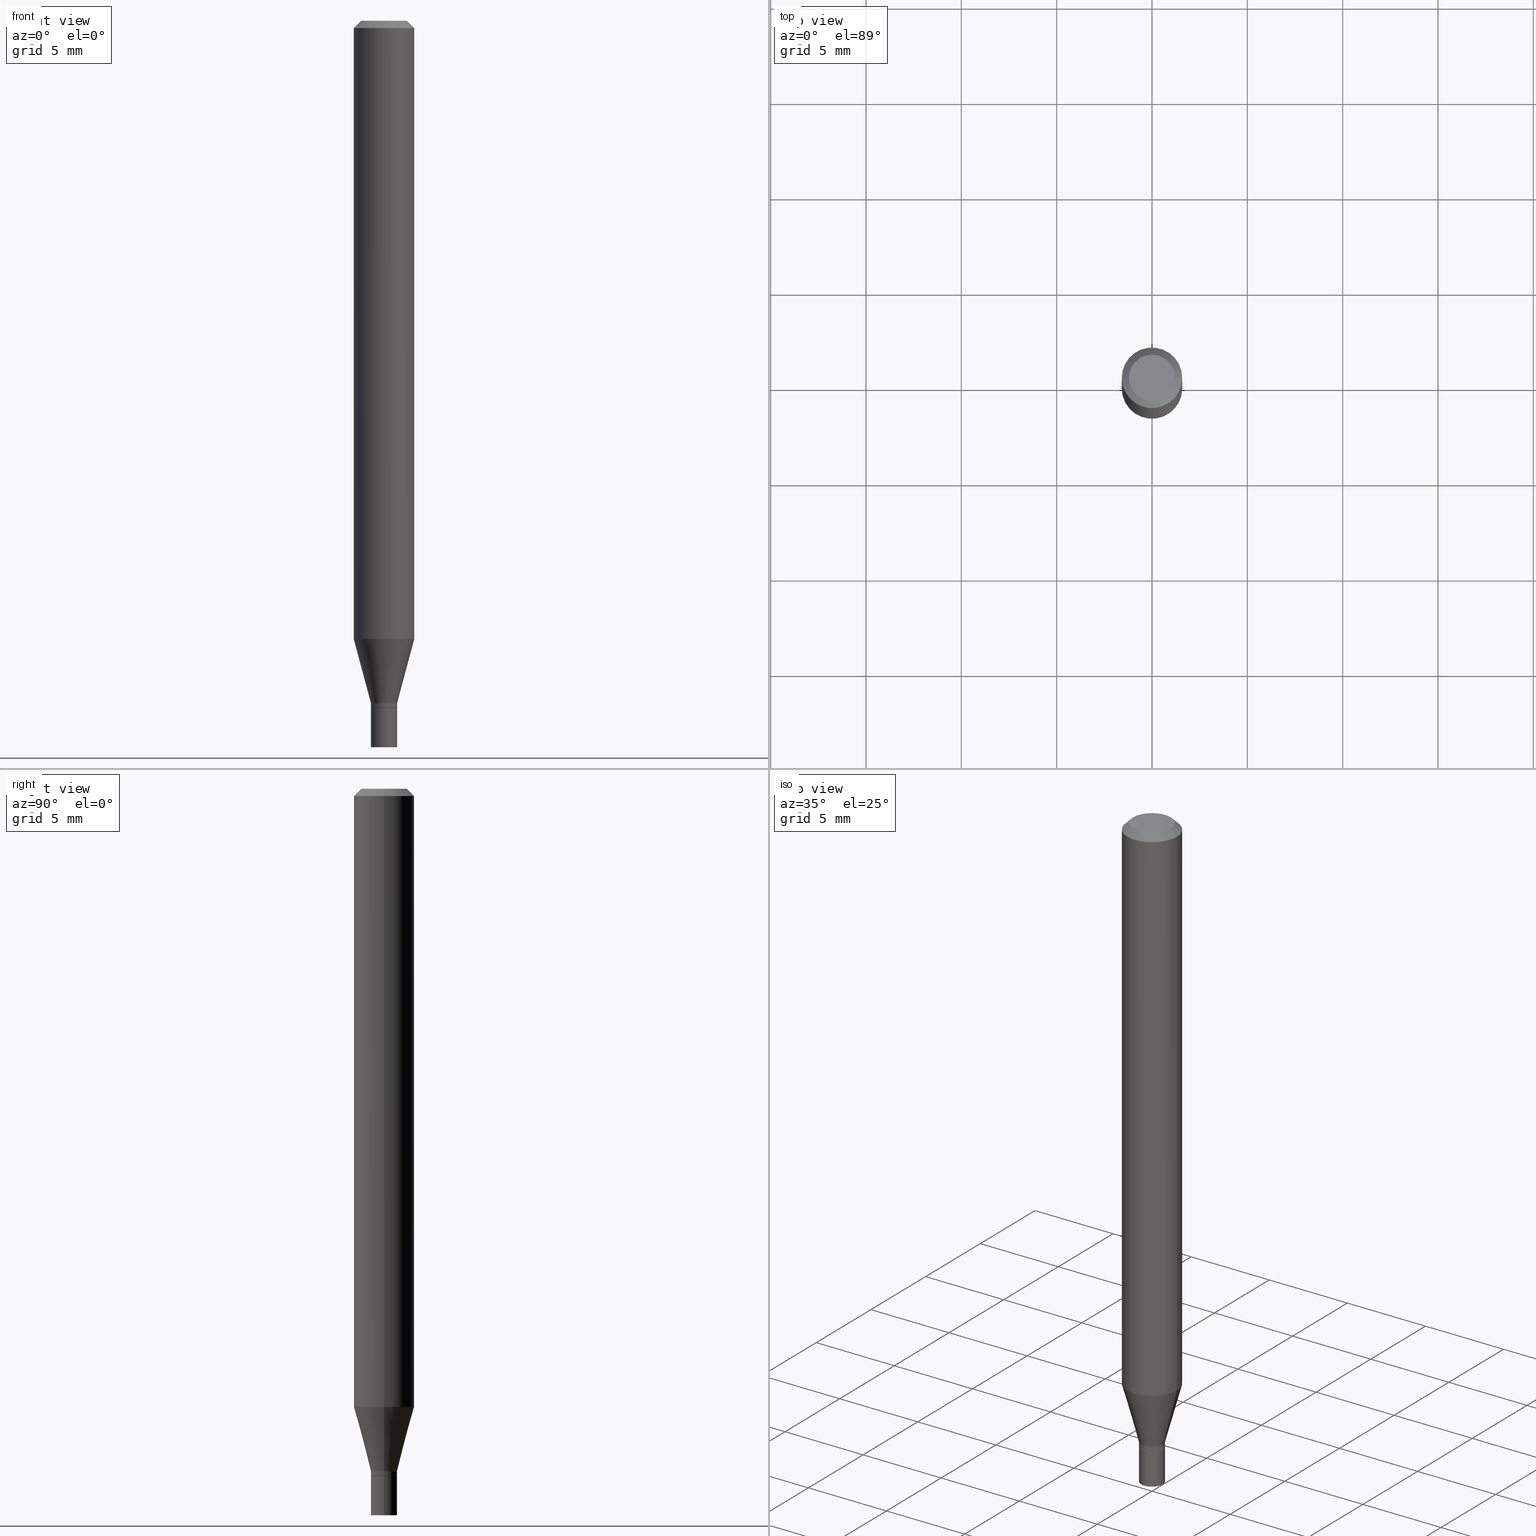
[diagram: canonical four-view strip — front | top / right | iso, engineering-drawing reading convention]
A machine part, canonical four-view strip (front | top / right | iso — engineering-drawing reading convention). The complete STEP part file that produces these views, byte-faithful:
ISO-10303-21;
HEADER;
FILE_DESCRIPTION (( 'STEP AP203' ),
    '1' );
FILE_NAME ('00350.STEP',
    '2024-03-19T21:01:46',
    ( '' ),
    ( '' ),
    'SwSTEP 2.0',
    'SolidWorks 2023',
    '' );
FILE_SCHEMA (( 'CONFIG_CONTROL_DESIGN' ));
ENDSEC;

DATA;
#1 = EDGE_CURVE ( 'NONE', #166, #98, #235, .T. ) ;
#2 = CARTESIAN_POINT ( 'NONE',  ( 0.000000000000000000, 0.000000000000000000, 0.000000000000000000 ) ) ;
#3 = CLOSED_SHELL ( 'NONE', ( #228, #362, #82, #44, #203, #196, #81, #155, #49, #421, #441, #330 ) ) ;
#4 = FACE_OUTER_BOUND ( 'NONE', #25, .T. ) ;
#5 = DIRECTION ( 'NONE',  ( -0.2588190451025209060, 5.211531920934547097E-15, 0.9659258262890682012 ) ) ;
#6 = PERSON_AND_ORGANIZATION ( #284, #426 ) ;
#7 = DIRECTION ( 'NONE',  ( -2.445468806185136597E-29, 3.491481338843145583E-15, 1.000000000000000000 ) ) ;
#8 = CARTESIAN_POINT ( 'NONE',  ( 3.668203209277705088E-31, -5.237222008264718399E-17, -0.01499999999999999944 ) ) ;
#9 = PERSON_AND_ORGANIZATION_ROLE ( 'design_supplier' ) ;
#10 = CARTESIAN_POINT ( 'NONE',  ( 0.02649999999999999925, -5.139460530777110033E-15, -1.419000000000000039 ) ) ;
#11 = EDGE_CURVE ( 'NONE', #124, #435, #386, .T. ) ;
#12 = DIRECTION ( 'NONE',  ( -2.445468806185136597E-29, 3.491481338843145583E-15, 1.000000000000000000 ) ) ;
#13 = PERSON_AND_ORGANIZATION ( #284, #426 ) ;
#14 = AXIS2_PLACEMENT_3D ( 'NONE', #8, #42, #54 ) ;
#15 = CIRCLE ( 'NONE', #248, 0.02699999999999999969 ) ;
#16 = APPROVAL_PERSON_ORGANIZATION ( #6, #464, #439 ) ;
#17 = LINE ( 'NONE', #45, #151 ) ;
#18 = ORIENTED_EDGE ( 'NONE', *, *, #69, .F. ) ;
#19 = DIRECTION ( 'NONE',  ( -2.445468806185136597E-29, 3.491481338843145583E-15, 1.000000000000000000 ) ) ;
#20 = APPROVAL ( #31, 'UNSPECIFIED' ) ;
#21 = ORIENTED_EDGE ( 'NONE', *, *, #383, .T. ) ;
#22 = ORIENTED_EDGE ( 'NONE', *, *, #251, .F. ) ;
#23 = CARTESIAN_POINT ( 'NONE',  ( 0.04749999999999999362, -4.035134999187574186E-16, 2.354505479474186932E-16 ) ) ;
#24 = AXIS2_PLACEMENT_3D ( 'NONE', #239, #380, #57 ) ;
#25 = EDGE_LOOP ( 'NONE', ( #153, #460 ) ) ;
#26 = CARTESIAN_POINT ( 'NONE',  ( 0.06250000000000000000, -4.888073874380388472E-16, -0.01499999999999999944 ) ) ;
#27 = EDGE_CURVE ( 'NONE', #245, #101, #405, .T. ) ;
#28 = CYLINDRICAL_SURFACE ( 'NONE', #331, 0.02699999999999999969 ) ;
#29 = DIRECTION ( 'NONE',  ( -2.445468806185136597E-29, 3.491481338843145583E-15, 1.000000000000000000 ) ) ;
#30 = AXIS2_PLACEMENT_3D ( 'NONE', #311, #402, #194 ) ;
#31 = APPROVAL_STATUS ( 'not_yet_approved' ) ;
#32 = AXIS2_PLACEMENT_3D ( 'NONE', #412, #352, #389 ) ;
#33 = APPLICATION_PROTOCOL_DEFINITION ( 'international standard', 'config_control_design', 1994, #445 ) ;
#34 = CYLINDRICAL_SURFACE ( 'NONE', #114, 0.02699999999999999969 ) ;
#35 = PERSON_AND_ORGANIZATION_ROLE ( 'creator' ) ;
#36 = PRODUCT ( '00350', '00350', '', ( #360 ) ) ;
#37 = CC_DESIGN_PERSON_AND_ORGANIZATION_ASSIGNMENT ( #220, #363, ( #36 ) ) ;
#38 = DIRECTION ( 'NONE',  ( -2.445468806185136877E-29, 3.491481338843145188E-15, 1.000000000000000000 ) ) ;
#39 = DATE_AND_TIME ( #183, #431 ) ;
#40 = DIRECTION ( 'NONE',  ( 1.000000000000000000, -6.982962677686280910E-15, 0.000000000000000000 ) ) ;
#41 = ADVANCED_FACE ( 'NONE', ( #297 ), #370, .F. ) ;
#42 = DIRECTION ( 'NONE',  ( -2.445468806185136597E-29, 3.491481338843145583E-15, 1.000000000000000000 ) ) ;
#43 = CYLINDRICAL_SURFACE ( 'NONE', #340, 0.06250000000000000000 ) ;
#44 = ADVANCED_FACE ( 'NONE', ( #120 ), #43, .T. ) ;
#45 = CARTESIAN_POINT ( 'NONE',  ( -0.02699999999999991990, 1.918465386552264810E-16, -1.328112474368820612E-30 ) ) ;
#46 = VECTOR ( 'NONE', #410, 39.37007874015748143 ) ;
#47 = CARTESIAN_POINT ( 'NONE',  ( 0.02699999999999991990, -1.885399922975286224E-16, 1.316567729464898656E-30 ) ) ;
#48 = PRODUCT_DEFINITION_SHAPE ( 'NONE', 'NONE',  #423 ) ;
#49 = ADVANCED_FACE ( 'NONE', ( #74 ), #221, .F. ) ;
#50 = CARTESIAN_POINT ( 'NONE',  ( 3.445665547914857626E-29, -4.919497206429992694E-15, -1.409000000000000252 ) ) ;
#51 = CARTESIAN_POINT ( 'NONE',  ( 3.668203209277704895E-29, -5.237222008264718177E-15, -1.500000000000000222 ) ) ;
#52 = ORIENTED_EDGE ( 'NONE', *, *, #1, .T. ) ;
#53 = EDGE_LOOP ( 'NONE', ( #230, #303, #254, #236 ) ) ;
#54 = DIRECTION ( 'NONE',  ( 1.000000000000000000, -6.982962677686266711E-15, 0.000000000000000000 ) ) ;
#55 = CIRCLE ( 'NONE', #32, 0.02699999999999992337 ) ;
#56 = LINE ( 'NONE', #133, #46 ) ;
#57 = DIRECTION ( 'NONE',  ( 1.000000000000000000, -6.982962677686265922E-15, 4.876176775795935793E-29 ) ) ;
#58 = CC_DESIGN_PERSON_AND_ORGANIZATION_ASSIGNMENT ( #219, #300, ( #232 ) ) ;
#59 = EDGE_CURVE ( 'NONE', #61, #131, #259, .T. ) ;
#60 = ORIENTED_EDGE ( 'NONE', *, *, #147, .F. ) ;
#61 = VERTEX_POINT ( 'NONE', #10 ) ;
#62 = CARTESIAN_POINT ( 'NONE',  ( 3.445665547914857626E-29, -4.919497206429992694E-15, -1.409000000000000252 ) ) ;
#63 = ORIENTED_EDGE ( 'NONE', *, *, #152, .F. ) ;
#64 = DIRECTION ( 'NONE',  ( -2.445468806185136597E-29, 3.491481338843145583E-15, 1.000000000000000000 ) ) ;
#65 = AXIS2_PLACEMENT_3D ( 'NONE', #112, #361, #116 ) ;
#66 = CIRCLE ( 'NONE', #218, 0.02649999999999999925 ) ;
#67 = DIRECTION ( 'NONE',  ( -2.445468806185136597E-29, 3.491481338843145583E-15, 1.000000000000000000 ) ) ;
#68 = DIRECTION ( 'NONE',  ( 1.000000000000000000, -6.982962677686277755E-15, 0.000000000000000000 ) ) ;
#69 = EDGE_CURVE ( 'NONE', #378, #417, #94, .T. ) ;
#70 = CC_DESIGN_APPROVAL ( #339, ( #423 ) ) ;
#71 = APPROVAL_DATE_TIME ( #39, #339 ) ;
#72 = ORIENTED_EDGE ( 'NONE', *, *, #215, .T. ) ;
#73 = APPLICATION_PROTOCOL_DEFINITION ( 'international standard', 'config_control_design', 1994, #242 ) ;
#74 = FACE_OUTER_BOUND ( 'NONE', #442, .T. ) ;
#75 = COORDINATED_UNIVERSAL_TIME_OFFSET ( 5, 0, .BEHIND. ) ;
#76 = DIRECTION ( 'NONE',  ( -1.000000000000000000, 6.982962677686265922E-15, -4.876176775795935793E-29 ) ) ;
#77 = CONICAL_SURFACE ( 'NONE', #108, 0.02699999999999991990, 0.2617993877991495744 ) ;
#78 = FACE_OUTER_BOUND ( 'NONE', #450, .T. ) ;
#79 = EDGE_CURVE ( 'NONE', #124, #312, #17, .T. ) ;
#80 = DIRECTION ( 'NONE',  ( -2.445468806185136597E-29, 3.491481338843145583E-15, 1.000000000000000000 ) ) ;
#81 = ADVANCED_FACE ( 'NONE', ( #199 ), #233, .T. ) ;
#82 = ADVANCED_FACE ( 'NONE', ( #128 ), #222, .T. ) ;
#83 = CC_DESIGN_SECURITY_CLASSIFICATION ( #446, ( #232 ) ) ;
#84 = DIRECTION ( 'NONE',  ( 1.000000000000000000, -6.982962677686266711E-15, 4.876176775795935793E-29 ) ) ;
#85 = CALENDAR_DATE ( 2024, 19, 3 ) ;
#86 = ORIENTED_EDGE ( 'NONE', *, *, #208, .T. ) ;
#87 = DIRECTION ( 'NONE',  ( -2.445468806185136877E-29, 3.491481338843145188E-15, 1.000000000000000000 ) ) ;
#88 = DIRECTION ( 'NONE',  ( 1.000000000000000000, -6.982962677686281699E-15, 0.000000000000000000 ) ) ;
#89 = EDGE_LOOP ( 'NONE', ( #72, #275, #267, #99 ) ) ;
#90 = DIRECTION ( 'NONE',  ( -2.445468806185136597E-29, 3.491481338843145583E-15, 1.000000000000000000 ) ) ;
#91 = ORIENTED_EDGE ( 'NONE', *, *, #401, .F. ) ;
#92 = ORIENTED_EDGE ( 'NONE', *, *, #123, .T. ) ;
#93 = FACE_OUTER_BOUND ( 'NONE', #418, .T. ) ;
#94 = CIRCLE ( 'NONE', #14, 0.06250000000000000000 ) ;
#95 = AXIS2_PLACEMENT_3D ( 'NONE', #346, #216, #100 ) ;
#96 = LOCAL_TIME ( 17, 1, 46.00000000000000000, #289 ) ;
#97 = FACE_OUTER_BOUND ( 'NONE', #197, .T. ) ;
#98 = VERTEX_POINT ( 'NONE', #336 ) ;
#99 = ORIENTED_EDGE ( 'NONE', *, *, #299, .F. ) ;
#100 = DIRECTION ( 'NONE',  ( 1.000000000000000000, -6.982962677686266711E-15, 0.000000000000000000 ) ) ;
#101 = VERTEX_POINT ( 'NONE', #156 ) ;
#102 = DIRECTION ( 'NONE',  ( 1.000000000000000000, -6.982962677686267499E-15, 4.852736867747366768E-29 ) ) ;
#103 = AXIS2_PLACEMENT_3D ( 'NONE', #187, #190, #256 ) ;
#104 = AXIS2_PLACEMENT_3D ( 'NONE', #243, #19, #274 ) ;
#105 = DIRECTION ( 'NONE',  ( 1.000000000000000000, -6.982962677686266711E-15, 4.876176775795935232E-29 ) ) ;
#106 = APPROVAL_STATUS ( 'not_yet_approved' ) ;
#107 = CONICAL_SURFACE ( 'NONE', #371, 0.06250000000000000000, 0.7853981633974405074 ) ;
#108 = AXIS2_PLACEMENT_3D ( 'NONE', #341, #130, #164 ) ;
#109 = CALENDAR_DATE ( 2024, 19, 3 ) ;
#110 = CC_DESIGN_APPROVAL ( #464, ( #446 ) ) ;
#111 = DIRECTION ( 'NONE',  ( 0.000000000000000000, 0.000000000000000000, 1.000000000000000000 ) ) ;
#112 = CARTESIAN_POINT ( 'NONE',  ( 3.316907271900976096E-16, 0.04749999999999999362, -4.812008962134135024E-17 ) ) ;
#113 = CARTESIAN_POINT ( 'NONE',  ( 3.470120235976709172E-29, -4.954412019818423555E-15, -1.419000000000000039 ) ) ;
#114 = AXIS2_PLACEMENT_3D ( 'NONE', #2, #294, #367 ) ;
#115 = CALENDAR_DATE ( 2024, 19, 3 ) ;
#116 = DIRECTION ( 'NONE',  ( -1.000000000000000000, 6.982962677686265922E-15, -4.876176775795935793E-29 ) ) ;
#117 = DESIGN_CONTEXT ( 'detailed design', #445, 'design' ) ;
#118 = DIRECTION ( 'NONE',  ( -2.445468806185136877E-29, 3.491481338843145188E-15, 1.000000000000000000 ) ) ;
#119 = CARTESIAN_POINT ( 'NONE',  ( 0.06250000000000000000, -4.893353679651821108E-15, -1.276512196331304860 ) ) ;
#120 = FACE_OUTER_BOUND ( 'NONE', #89, .T. ) ;
#121 = ORIENTED_EDGE ( 'NONE', *, *, #178, .F. ) ;
#122 = AXIS2_PLACEMENT_3D ( 'NONE', #184, #328, #224 ) ;
#123 = EDGE_CURVE ( 'NONE', #61, #435, #56, .T. ) ;
#124 = VERTEX_POINT ( 'NONE', #338 ) ;
#125 = CC_DESIGN_PERSON_AND_ORGANIZATION_ASSIGNMENT ( #191, #9, ( #232 ) ) ;
#126 = ORIENTED_EDGE ( 'NONE', *, *, #11, .F. ) ;
#127 = ORIENTED_EDGE ( 'NONE', *, *, #321, .F. ) ;
#128 = FACE_OUTER_BOUND ( 'NONE', #409, .T. ) ;
#129 = CARTESIAN_POINT ( 'NONE',  ( 3.121670756843082346E-29, -4.456918512296428650E-15, -1.276512196331304860 ) ) ;
#130 = DIRECTION ( 'NONE',  ( -2.445468806185136597E-29, 3.491481338843145583E-15, 1.000000000000000000 ) ) ;
#131 = VERTEX_POINT ( 'NONE', #448 ) ;
#132 = ORIENTED_EDGE ( 'NONE', *, *, #257, .T. ) ;
#133 = CARTESIAN_POINT ( 'NONE',  ( 0.02649999999999999925, -5.139460530777110033E-15, -1.419000000000000039 ) ) ;
#134 = DIRECTION ( 'NONE',  ( -2.445468806185136877E-29, 3.491481338843145188E-15, 1.000000000000000000 ) ) ;
#135 = AXIS2_PLACEMENT_3D ( 'NONE', #461, #459, #416 ) ;
#136 = ORIENTED_EDGE ( 'NONE', *, *, #257, .F. ) ;
#137 = ORIENTED_EDGE ( 'NONE', *, *, #401, .T. ) ;
#138 = DIRECTION ( 'NONE',  ( -2.445468806185136597E-29, 3.491481338843145583E-15, 1.000000000000000000 ) ) ;
#139 = CARTESIAN_POINT ( 'NONE',  ( -0.02699999999999991990, -4.370239985110565754E-15, -1.409000000000000252 ) ) ;
#140 = CARTESIAN_POINT ( 'NONE',  ( 3.470120235976709172E-29, -4.954412019818423555E-15, -1.419000000000000039 ) ) ;
#141 = AXIS2_PLACEMENT_3D ( 'NONE', #264, #80, #238 ) ;
#142 = CIRCLE ( 'NONE', #372, 0.02699999999999991990 ) ;
#143 = COORDINATED_UNIVERSAL_TIME_OFFSET ( 5, 0, .BEHIND. ) ;
#144 = DATE_AND_TIME ( #109, #96 ) ;
#145 = ORIENTED_EDGE ( 'NONE', *, *, #178, .T. ) ;
#146 =( CONVERSION_BASED_UNIT ( 'INCH', #428 ) LENGTH_UNIT ( ) NAMED_UNIT ( #348 ) );
#147 = EDGE_CURVE ( 'NONE', #435, #393, #165, .T. ) ;
#148 = AXIS2_PLACEMENT_3D ( 'NONE', #129, #209, #276 ) ;
#149 =( NAMED_UNIT ( * ) SI_UNIT ( $, .STERADIAN. ) SOLID_ANGLE_UNIT ( ) );
#150 = APPROVAL_ROLE ( '' ) ;
#151 = VECTOR ( 'NONE', #87, 39.37007874015748143 ) ;
#152 = EDGE_CURVE ( 'NONE', #377, #319, #240, .T. ) ;
#153 = ORIENTED_EDGE ( 'NONE', *, *, #251, .T. ) ;
#154 = LOCAL_TIME ( 17, 1, 46.00000000000000000, #333 ) ;
#155 = ADVANCED_FACE ( 'NONE', ( #78 ), #107, .T. ) ;
#156 = CARTESIAN_POINT ( 'NONE',  ( -0.02699999999999999969, -4.903970475386344434E-15, -1.419000000000000039 ) ) ;
#157 = ORIENTED_EDGE ( 'NONE', *, *, #206, .T. ) ;
#158 = DIRECTION ( 'NONE',  ( -2.445468806185136597E-29, 3.491481338843145583E-15, 1.000000000000000000 ) ) ;
#159 = AXIS2_PLACEMENT_3D ( 'NONE', #162, #440, #40 ) ;
#160 = CONICAL_SURFACE ( 'NONE', #285, 0.02699999999999991990, 0.2617993877991495744 ) ;
#161 = DIRECTION ( 'NONE',  ( 1.000000000000000000, -6.982962677686262766E-15, 0.000000000000000000 ) ) ;
#162 = CARTESIAN_POINT ( 'NONE',  ( 3.468897501573616931E-29, -4.952666279149002051E-15, -1.418500000000000094 ) ) ;
#163 = ORIENTED_EDGE ( 'NONE', *, *, #11, .T. ) ;
#164 = DIRECTION ( 'NONE',  ( 1.000000000000000000, -6.982962677686281699E-15, 0.000000000000000000 ) ) ;
#165 = LINE ( 'NONE', #47, #365 ) ;
#166 = VERTEX_POINT ( 'NONE', #212 ) ;
#167 = CARTESIAN_POINT ( 'NONE',  ( -0.06250000000000000000, -1.810556156339475445E-15, -0.01499999999999999944 ) ) ;
#168 = EDGE_LOOP ( 'NONE', ( #169, #145, #174, #429 ) ) ;
#169 = ORIENTED_EDGE ( 'NONE', *, *, #59, .T. ) ;
#170 = EDGE_CURVE ( 'NONE', #393, #210, #286, .T. ) ;
#171 = CARTESIAN_POINT ( 'NONE',  ( 0.02699999999999991990, -5.108037198727522179E-15, -1.409000000000000252 ) ) ;
#172 = APPROVAL_PERSON_ORGANIZATION ( #355, #339, #150 ) ;
#173 = APPROVAL_PERSON_ORGANIZATION ( #217, #20, #466 ) ;
#174 = ORIENTED_EDGE ( 'NONE', *, *, #349, .F. ) ;
#175 = DIRECTION ( 'NONE',  ( -2.445468806185136597E-29, 3.491481338843145583E-15, 1.000000000000000000 ) ) ;
#176 = EDGE_CURVE ( 'NONE', #101, #98, #202, .T. ) ;
#177 = DIRECTION ( 'NONE',  ( 1.000000000000000000, -6.982962677686265922E-15, 4.876176775795935232E-29 ) ) ;
#178 = EDGE_CURVE ( 'NONE', #131, #124, #329, .T. ) ;
#179 = ADVANCED_FACE ( 'NONE', ( #4 ), #332, .F. ) ;
#180 = FACE_OUTER_BOUND ( 'NONE', #301, .T. ) ;
#181 = CC_DESIGN_DATE_AND_TIME_ASSIGNMENT ( #225, #373, ( #446 ) ) ;
#182 = VECTOR ( 'NONE', #320, 39.37007874015748143 ) ;
#183 = CALENDAR_DATE ( 2024, 19, 3 ) ;
#184 = CARTESIAN_POINT ( 'NONE',  ( 3.470120235976709172E-29, -4.954412019818423555E-15, -1.419000000000000039 ) ) ;
#185 = DIRECTION ( 'NONE',  ( 0.2588190451025209060, 1.565188264969625123E-15, 0.9659258262890682012 ) ) ;
#186 =( LENGTH_UNIT ( ) NAMED_UNIT ( * ) SI_UNIT ( $, .METRE. ) );
#187 = CARTESIAN_POINT ( 'NONE',  ( 3.576687321579069994E-29, -5.368277968210015545E-15, -1.500000000000000222 ) ) ;
#188 = MANIFOLD_SOLID_BREP ( 'Body-Move/Copy2[2]', #3 ) ;
#189 = DIRECTION ( 'NONE',  ( 2.438088387897960049E-29, -3.491481338843145188E-15, -1.000000000000000000 ) ) ;
#190 = DIRECTION ( 'NONE',  ( -2.438088387897960049E-29, 3.491481338843145188E-15, 1.000000000000000000 ) ) ;
#191 = PERSON_AND_ORGANIZATION ( #284, #426 ) ;
#192 = AXIS2_PLACEMENT_3D ( 'NONE', #443, #90, #161 ) ;
#193 = DIRECTION ( 'NONE',  ( -1.000000000000000000, 6.982962677686266711E-15, 0.000000000000000000 ) ) ;
#194 = DIRECTION ( 'NONE',  ( 1.000000000000000000, -6.982962677686267499E-15, 4.852736867747366768E-29 ) ) ;
#195 = APPROVAL_STATUS ( 'not_yet_approved' ) ;
#196 = ADVANCED_FACE ( 'NONE', ( #334 ), #160, .T. ) ;
#197 = EDGE_LOOP ( 'NONE', ( #344, #163, #262, #384 ) ) ;
#198 = MANIFOLD_SOLID_BREP ( 'Body-Move/Copy2[1]', #302 ) ;
#199 = FACE_OUTER_BOUND ( 'NONE', #309, .T. ) ;
#200 = VECTOR ( 'NONE', #368, 39.37007874015748143 ) ;
#201 = FACE_OUTER_BOUND ( 'NONE', #272, .T. ) ;
#202 = CIRCLE ( 'NONE', #356, 0.02699999999999999969 ) ;
#203 = ADVANCED_FACE ( 'NONE', ( #201 ), #77, .T. ) ;
#204 = VERTEX_POINT ( 'NONE', #310 ) ;
#205 = LINE ( 'NONE', #343, #260 ) ;
#206 = EDGE_CURVE ( 'NONE', #319, #378, #269, .T. ) ;
#207 = ORIENTED_EDGE ( 'NONE', *, *, #206, .F. ) ;
#208 = EDGE_CURVE ( 'NONE', #245, #166, #444, .T. ) ;
#209 = DIRECTION ( 'NONE',  ( -2.445468806185136597E-29, 3.491481338843145583E-15, 1.000000000000000000 ) ) ;
#210 = VERTEX_POINT ( 'NONE', #119 ) ;
#211 = DIRECTION ( 'NONE',  ( 1.000000000000000000, -6.982962677686277755E-15, 0.000000000000000000 ) ) ;
#212 = CARTESIAN_POINT ( 'NONE',  ( 0.02699999999999999969, -5.425762000562247662E-15, -1.500000000000000222 ) ) ;
#213 = CIRCLE ( 'NONE', #135, 0.02699999999999991990 ) ;
#214 = CYLINDRICAL_SURFACE ( 'NONE', #104, 0.02699999999999991990 ) ;
#215 = EDGE_CURVE ( 'NONE', #210, #204, #291, .T. ) ;
#216 = DIRECTION ( 'NONE',  ( -2.445468806185136597E-29, 3.491481338843145583E-15, 1.000000000000000000 ) ) ;
#217 = PERSON_AND_ORGANIZATION ( #284, #426 ) ;
#218 = AXIS2_PLACEMENT_3D ( 'NONE', #249, #350, #68 ) ;
#219 = PERSON_AND_ORGANIZATION ( #284, #426 ) ;
#220 = PERSON_AND_ORGANIZATION ( #284, #426 ) ;
#221 = PLANE ( 'NONE',  #65 ) ;
#222 = CONICAL_SURFACE ( 'NONE', #436, 0.06250000000000000000, 0.7853981633974405074 ) ;
#223 = AXIS2_PLACEMENT_3D ( 'NONE', #391, #111, #253 ) ;
#224 = DIRECTION ( 'NONE',  ( 1.000000000000000000, -6.982962677686277755E-15, 0.000000000000000000 ) ) ;
#225 = DATE_AND_TIME ( #85, #154 ) ;
#226 = DIRECTION ( 'NONE',  ( -0.7071067811865656694, 7.493145998870420424E-15, 0.7071067811865294761 ) ) ;
#227 = CARTESIAN_POINT ( 'NONE',  ( -0.02699999999999999969, 1.918465386552270480E-16, -1.328112474368824466E-30 ) ) ;
#228 = ADVANCED_FACE ( 'NONE', ( #270 ), #408, .T. ) ;
#229 = SECURITY_CLASSIFICATION_LEVEL ( 'unclassified' ) ;
#230 = ORIENTED_EDGE ( 'NONE', *, *, #433, .F. ) ;
#231 = CIRCLE ( 'NONE', #148, 0.06250000000000000000 ) ;
#232 = PRODUCT_DEFINITION_FORMATION_WITH_SPECIFIED_SOURCE ( 'ANY', '', #36, .NOT_KNOWN. ) ;
#233 = CYLINDRICAL_SURFACE ( 'NONE', #424, 0.06250000000000000000 ) ;
#234 = CARTESIAN_POINT ( 'NONE',  ( -0.06250000000000000000, 3.840629472727444916E-16, -0.01499999999999999944 ) ) ;
#235 = LINE ( 'NONE', #261, #200 ) ;
#236 = ORIENTED_EDGE ( 'NONE', *, *, #292, .F. ) ;
#237 = ORIENTED_EDGE ( 'NONE', *, *, #433, .T. ) ;
#238 = DIRECTION ( 'NONE',  ( 1.000000000000000000, -6.982962677686277755E-15, 0.000000000000000000 ) ) ;
#239 = CARTESIAN_POINT ( 'NONE',  ( 3.470120235976709172E-29, -4.954412019818423555E-15, -1.419000000000000039 ) ) ;
#240 = CIRCLE ( 'NONE', #30, 0.04749999999999999362 ) ;
#241 = CIRCLE ( 'NONE', #392, 0.04749999999999999362 ) ;
#242 = APPLICATION_CONTEXT ( 'configuration controlled 3d designs of mechanical parts and assemblies' ) ;
#243 = CARTESIAN_POINT ( 'NONE',  ( 0.000000000000000000, 0.000000000000000000, 0.000000000000000000 ) ) ;
#244 = DIRECTION ( 'NONE',  ( -1.000000000000000000, 6.982962677686266711E-15, 0.000000000000000000 ) ) ;
#245 = VERTEX_POINT ( 'NONE', #381 ) ;
#246 = DIRECTION ( 'NONE',  ( -2.445468806185136597E-29, 3.491481338843145583E-15, 1.000000000000000000 ) ) ;
#247 = LINE ( 'NONE', #463, #399 ) ;
#248 = AXIS2_PLACEMENT_3D ( 'NONE', #322, #246, #279 ) ;
#249 = CARTESIAN_POINT ( 'NONE',  ( 3.470120235976709172E-29, -4.954412019818423555E-15, -1.419000000000000039 ) ) ;
#250 = ORIENTED_EDGE ( 'NONE', *, *, #208, .F. ) ;
#251 = EDGE_CURVE ( 'NONE', #98, #101, #15, .T. ) ;
#252 = ORIENTED_EDGE ( 'NONE', *, *, #59, .F. ) ;
#253 = DIRECTION ( 'NONE',  ( 1.000000000000000000, 0.000000000000000000, 0.000000000000000000 ) ) ;
#254 = ORIENTED_EDGE ( 'NONE', *, *, #170, .T. ) ;
#255 = CC_DESIGN_PERSON_AND_ORGANIZATION_ASSIGNMENT ( #465, #35, ( #423 ) ) ;
#256 = DIRECTION ( 'NONE',  ( 1.000000000000000000, -6.982962677686265922E-15, 4.876176775795935793E-29 ) ) ;
#257 = EDGE_CURVE ( 'NONE', #166, #245, #335, .T. ) ;
#258 = DATE_AND_TIME ( #434, #295 ) ;
#259 = CIRCLE ( 'NONE', #141, 0.02649999999999999925 ) ;
#260 = VECTOR ( 'NONE', #134, 39.37007874015748143 ) ;
#261 = CARTESIAN_POINT ( 'NONE',  ( 0.02699999999999999969, -1.885399922975291894E-16, 1.316567729464902510E-30 ) ) ;
#262 = ORIENTED_EDGE ( 'NONE', *, *, #147, .T. ) ;
#263 = DIRECTION ( 'NONE',  ( 1.000000000000000000, -6.982962677686261189E-15, 0.000000000000000000 ) ) ;
#264 = CARTESIAN_POINT ( 'NONE',  ( 3.470120235976709172E-29, -4.954412019818423555E-15, -1.419000000000000039 ) ) ;
#265 = VECTOR ( 'NONE', #38, 39.37007874015748143 ) ;
#266 = APPROVAL_DATE_TIME ( #374, #464 ) ;
#267 = ORIENTED_EDGE ( 'NONE', *, *, #342, .F. ) ;
#268 = AXIS2_PLACEMENT_3D ( 'NONE', #140, #64, #211 ) ;
#269 = LINE ( 'NONE', #234, #379 ) ;
#270 = FACE_OUTER_BOUND ( 'NONE', #359, .T. ) ;
#271 = PERSON_AND_ORGANIZATION_ROLE ( 'classification_officer' ) ;
#272 = EDGE_LOOP ( 'NONE', ( #458, #237, #304, #323 ) ) ;
#273 = ORIENTED_EDGE ( 'NONE', *, *, #292, .T. ) ;
#274 = DIRECTION ( 'NONE',  ( 1.000000000000000000, -6.982962677686265922E-15, 4.876176775795935232E-29 ) ) ;
#275 = ORIENTED_EDGE ( 'NONE', *, *, #430, .T. ) ;
#276 = DIRECTION ( 'NONE',  ( 1.000000000000000000, -6.982962677686262766E-15, 0.000000000000000000 ) ) ;
#277 = CONICAL_SURFACE ( 'NONE', #122, 0.02649999999999999925, 0.7853981633974739252 ) ;
#278 = ORIENTED_EDGE ( 'NONE', *, *, #396, .F. ) ;
#279 = DIRECTION ( 'NONE',  ( 1.000000000000000000, -6.982962677686261189E-15, 0.000000000000000000 ) ) ;
#280 = CARTESIAN_POINT ( 'NONE',  ( 3.668203209277705088E-31, -5.237222008264718399E-17, -0.01499999999999999944 ) ) ;
#281 = EDGE_LOOP ( 'NONE', ( #121, #21, #92, #126 ) ) ;
#282 = FACE_OUTER_BOUND ( 'NONE', #168, .T. ) ;
#283 = CARTESIAN_POINT ( 'NONE',  ( 0.000000000000000000, 0.000000000000000000, 0.000000000000000000 ) ) ;
#284 = PERSON ( 'UNSPECIFIED', 'UNSPECIFIED', 'UNSPECIFIED', ('UNSPECIFIED'), ('UNSPECIFIED'), ('UNSPECIFIED') ) ;
#285 = AXIS2_PLACEMENT_3D ( 'NONE', #50, #394, #88 ) ;
#286 = LINE ( 'NONE', #314, #413 ) ;
#287 = DATE_TIME_ROLE ( 'creation_date' ) ;
#288 = APPROVAL_DATE_TIME ( #144, #20 ) ;
#289 = COORDINATED_UNIVERSAL_TIME_OFFSET ( 5, 0, .BEHIND. ) ;
#290 = CC_DESIGN_DATE_AND_TIME_ASSIGNMENT ( #258, #287, ( #423 ) ) ;
#291 = CIRCLE ( 'NONE', #192, 0.06250000000000000000 ) ;
#292 = EDGE_CURVE ( 'NONE', #204, #210, #231, .T. ) ;
#293 = CARTESIAN_POINT ( 'NONE',  ( 0.000000000000000000, 0.000000000000000000, 0.000000000000000000 ) ) ;
#294 = DIRECTION ( 'NONE',  ( -2.445468806185136597E-29, 3.491481338843145583E-15, 1.000000000000000000 ) ) ;
#295 = LOCAL_TIME ( 17, 1, 46.00000000000000000, #143 ) ;
#296 = CARTESIAN_POINT ( 'NONE',  ( 3.668203209277705088E-31, -5.237222008264718399E-17, -0.01499999999999999944 ) ) ;
#297 = FACE_OUTER_BOUND ( 'NONE', #308, .T. ) ;
#298 = UNCERTAINTY_MEASURE_WITH_UNIT (LENGTH_MEASURE( 1.000000000000000082E-05 ), #146, 'distance_accuracy_value', 'NONE');
#299 = EDGE_CURVE ( 'NONE', #210, #417, #313, .T. ) ;
#300 = PERSON_AND_ORGANIZATION_ROLE ( 'creator' ) ;
#301 = EDGE_LOOP ( 'NONE', ( #252, #420 ) ) ;
#302 = CLOSED_SHELL ( 'NONE', ( #407, #41, #462, #179 ) ) ;
#303 = ORIENTED_EDGE ( 'NONE', *, *, #327, .T. ) ;
#304 = ORIENTED_EDGE ( 'NONE', *, *, #215, .F. ) ;
#305 = VECTOR ( 'NONE', #226, 39.37007874015748143 ) ;
#306 = DIRECTION ( 'NONE',  ( 1.000000000000000000, -6.982962677686266711E-15, 4.876176775795935793E-29 ) ) ;
#307 = LOCAL_TIME ( 17, 1, 46.00000000000000000, #447 ) ;
#308 = EDGE_LOOP ( 'NONE', ( #136, #250 ) ) ;
#309 = EDGE_LOOP ( 'NONE', ( #315, #273, #347, #18 ) ) ;
#310 = CARTESIAN_POINT ( 'NONE',  ( -0.06250000000000000000, -4.012829302446366033E-15, -1.276512196331304860 ) ) ;
#311 = CARTESIAN_POINT ( 'NONE',  ( -5.757869704046039586E-45, 8.220711943787967025E-31, 2.354505479474161294E-16 ) ) ;
#312 = VERTEX_POINT ( 'NONE', #139 ) ;
#313 = LINE ( 'NONE', #385, #182 ) ;
#314 = CARTESIAN_POINT ( 'NONE',  ( 0.02699999999999991990, -5.108037198727522179E-15, -1.409000000000000252 ) ) ;
#315 = ORIENTED_EDGE ( 'NONE', *, *, #430, .F. ) ;
#316 = ORIENTED_EDGE ( 'NONE', *, *, #176, .F. ) ;
#317 = CARTESIAN_POINT ( 'NONE',  ( -5.757869704046039586E-45, 8.220711943787967025E-31, 2.354505479474161294E-16 ) ) ;
#318 =( GEOMETRIC_REPRESENTATION_CONTEXT ( 3 ) GLOBAL_UNCERTAINTY_ASSIGNED_CONTEXT ( ( #298 ) ) GLOBAL_UNIT_ASSIGNED_CONTEXT ( ( #146, #395, #149 ) ) REPRESENTATION_CONTEXT ( 'NONE', 'WORKASPACE' ) );
#319 = VERTEX_POINT ( 'NONE', #353 ) ;
#320 = DIRECTION ( 'NONE',  ( -2.445468806185136877E-29, 3.491481338843145188E-15, 1.000000000000000000 ) ) ;
#321 = EDGE_CURVE ( 'NONE', #393, #312, #142, .T. ) ;
#322 = CARTESIAN_POINT ( 'NONE',  ( 3.470120235976709172E-29, -4.954412019818423555E-15, -1.419000000000000039 ) ) ;
#323 = ORIENTED_EDGE ( 'NONE', *, *, #170, .F. ) ;
#324 = CARTESIAN_POINT ( 'NONE',  ( -0.02699999999999991990, -4.727650667774767051E-15, -1.409000000000000252 ) ) ;
#325 = VECTOR ( 'NONE', #5, 39.37007874015748143 ) ;
#326 = LINE ( 'NONE', #324, #325 ) ;
#327 = EDGE_CURVE ( 'NONE', #312, #393, #213, .T. ) ;
#328 = DIRECTION ( 'NONE',  ( -2.445468806185136597E-29, 3.491481338843145583E-15, 1.000000000000000000 ) ) ;
#329 = LINE ( 'NONE', #400, #305 ) ;
#330 = ADVANCED_FACE ( 'NONE', ( #97 ), #214, .T. ) ;
#331 = AXIS2_PLACEMENT_3D ( 'NONE', #283, #425, #105 ) ;
#332 = PLANE ( 'NONE',  #388 ) ;
#333 = COORDINATED_UNIVERSAL_TIME_OFFSET ( 5, 0, .BEHIND. ) ;
#334 = FACE_OUTER_BOUND ( 'NONE', #53, .T. ) ;
#335 = CIRCLE ( 'NONE', #366, 0.02699999999999999969 ) ;
#336 = CARTESIAN_POINT ( 'NONE',  ( 0.02699999999999999969, -5.142952012115952251E-15, -1.419000000000000039 ) ) ;
#337 = DIRECTION ( 'NONE',  ( 1.000000000000000000, -6.982962677686261189E-15, 0.000000000000000000 ) ) ;
#338 = CARTESIAN_POINT ( 'NONE',  ( -0.02699999999999992337, -4.760819740493776408E-15, -1.418500000000000094 ) ) ;
#339 = APPROVAL ( #106, 'UNSPECIFIED' ) ;
#340 = AXIS2_PLACEMENT_3D ( 'NONE', #293, #438, #84 ) ;
#341 = CARTESIAN_POINT ( 'NONE',  ( 3.445665547914857626E-29, -4.919497206429992694E-15, -1.409000000000000252 ) ) ;
#342 = EDGE_CURVE ( 'NONE', #417, #378, #406, .T. ) ;
#343 = CARTESIAN_POINT ( 'NONE',  ( -0.06250000000000000000, 4.440892098500626162E-16, -3.074334431409316114E-30 ) ) ;
#344 = ORIENTED_EDGE ( 'NONE', *, *, #79, .F. ) ;
#345 = ORIENTED_EDGE ( 'NONE', *, *, #79, .T. ) ;
#346 = CARTESIAN_POINT ( 'NONE',  ( 3.668203209277705088E-31, -5.237222008264718399E-17, -0.01499999999999999944 ) ) ;
#347 = ORIENTED_EDGE ( 'NONE', *, *, #299, .T. ) ;
#348 = DIMENSIONAL_EXPONENTS ( 1.000000000000000000, 0.000000000000000000, 0.000000000000000000, 0.000000000000000000, 0.000000000000000000, 0.000000000000000000, 0.000000000000000000 ) ;
#349 = EDGE_CURVE ( 'NONE', #435, #124, #55, .T. ) ;
#350 = DIRECTION ( 'NONE',  ( -2.445468806185136597E-29, 3.491481338843145583E-15, 1.000000000000000000 ) ) ;
#351 = AXIS2_PLACEMENT_3D ( 'NONE', #51, #12, #337 ) ;
#352 = DIRECTION ( 'NONE',  ( -2.445468806185136597E-29, 3.491481338843145583E-15, 1.000000000000000000 ) ) ;
#353 = CARTESIAN_POINT ( 'NONE',  ( -0.04749999999999999362, 3.578768372314215436E-16, 2.354505479474137135E-16 ) ) ;
#354 = CARTESIAN_POINT ( 'NONE',  ( 0.000000000000000000, 0.000000000000000000, 0.000000000000000000 ) ) ;
#355 = PERSON_AND_ORGANIZATION ( #284, #426 ) ;
#356 = AXIS2_PLACEMENT_3D ( 'NONE', #113, #7, #263 ) ;
#357 = CC_DESIGN_PERSON_AND_ORGANIZATION_ASSIGNMENT ( #13, #271, ( #446 ) ) ;
#358 = CARTESIAN_POINT ( 'NONE',  ( 0.02699999999999992337, -5.141206271446531536E-15, -1.418500000000000094 ) ) ;
#359 = EDGE_LOOP ( 'NONE', ( #411, #345, #127, #60 ) ) ;
#360 = MECHANICAL_CONTEXT ( 'NONE', #242, 'mechanical' ) ;
#361 = DIRECTION ( 'NONE',  ( 2.438088387897960049E-29, -3.491481338843145188E-15, -1.000000000000000000 ) ) ;
#362 = ADVANCED_FACE ( 'NONE', ( #282 ), #414, .T. ) ;
#363 = PERSON_AND_ORGANIZATION_ROLE ( 'design_owner' ) ;
#364 = ORIENTED_EDGE ( 'NONE', *, *, #69, .T. ) ;
#365 = VECTOR ( 'NONE', #118, 39.37007874015748143 ) ;
#366 = AXIS2_PLACEMENT_3D ( 'NONE', #454, #67, #422 ) ;
#367 = DIRECTION ( 'NONE',  ( 1.000000000000000000, -6.982962677686266711E-15, 4.876176775795935232E-29 ) ) ;
#368 = DIRECTION ( 'NONE',  ( -2.445468806185136877E-29, 3.491481338843145188E-15, 1.000000000000000000 ) ) ;
#369 = SHAPE_DEFINITION_REPRESENTATION ( #48, #403 ) ;
#370 = PLANE ( 'NONE',  #103 ) ;
#371 = AXIS2_PLACEMENT_3D ( 'NONE', #280, #455, #244 ) ;
#372 = AXIS2_PLACEMENT_3D ( 'NONE', #62, #29, #419 ) ;
#373 = DATE_TIME_ROLE ( 'classification_date' ) ;
#374 = DATE_AND_TIME ( #115, #307 ) ;
#375 = CARTESIAN_POINT ( 'NONE',  ( 0.000000000000000000, 0.000000000000000000, 0.000000000000000000 ) ) ;
#376 = DIRECTION ( 'NONE',  ( -0.7071067811865420216, 2.468850131082199474E-15, -0.7071067811865530128 ) ) ;
#377 = VERTEX_POINT ( 'NONE', #23 ) ;
#378 = VERTEX_POINT ( 'NONE', #167 ) ;
#379 = VECTOR ( 'NONE', #376, 39.37007874015748143 ) ;
#380 = DIRECTION ( 'NONE',  ( -2.438088387897960049E-29, 3.491481338843145188E-15, 1.000000000000000000 ) ) ;
#381 = CARTESIAN_POINT ( 'NONE',  ( -0.02699999999999999969, -4.903970475386344434E-15, -1.500000000000000222 ) ) ;
#382 = ORIENTED_EDGE ( 'NONE', *, *, #396, .T. ) ;
#383 = EDGE_CURVE ( 'NONE', #131, #61, #66, .T. ) ;
#384 = ORIENTED_EDGE ( 'NONE', *, *, #327, .F. ) ;
#385 = CARTESIAN_POINT ( 'NONE',  ( 0.06250000000000000000, -4.364351673553916694E-16, 3.047610484872459871E-30 ) ) ;
#386 = CIRCLE ( 'NONE', #159, 0.02699999999999992337 ) ;
#387 = DIRECTION ( 'NONE',  ( 0.7071067811865420216, -7.319954787623237113E-15, -0.7071067811865530128 ) ) ;
#388 = AXIS2_PLACEMENT_3D ( 'NONE', #398, #189, #76 ) ;
#389 = DIRECTION ( 'NONE',  ( 1.000000000000000000, -6.982962677686280910E-15, 0.000000000000000000 ) ) ;
#390 = FACE_OUTER_BOUND ( 'NONE', #281, .T. ) ;
#391 = CARTESIAN_POINT ( 'NONE',  ( 0.000000000000000000, 0.000000000000000000, 0.000000000000000000 ) ) ;
#392 = AXIS2_PLACEMENT_3D ( 'NONE', #317, #138, #102 ) ;
#393 = VERTEX_POINT ( 'NONE', #171 ) ;
#394 = DIRECTION ( 'NONE',  ( -2.445468806185136597E-29, 3.491481338843145583E-15, 1.000000000000000000 ) ) ;
#395 =( NAMED_UNIT ( * ) PLANE_ANGLE_UNIT ( ) SI_UNIT ( $, .RADIAN. ) );
#396 = EDGE_CURVE ( 'NONE', #319, #377, #241, .T. ) ;
#397 = FACE_OUTER_BOUND ( 'NONE', #404, .T. ) ;
#398 = CARTESIAN_POINT ( 'NONE',  ( 1.885399922975638746E-16, 0.02699999999999504532, -1.419000000000000039 ) ) ;
#399 = VECTOR ( 'NONE', #387, 39.37007874015748143 ) ;
#400 = CARTESIAN_POINT ( 'NONE',  ( -0.02649999999999999925, -4.766118194841997232E-15, -1.419000000000000039 ) ) ;
#401 = EDGE_CURVE ( 'NONE', #377, #417, #247, .T. ) ;
#402 = DIRECTION ( 'NONE',  ( -2.445468806185136597E-29, 3.491481338843145583E-15, 1.000000000000000000 ) ) ;
#403 = ADVANCED_BREP_SHAPE_REPRESENTATION ( '00350', ( #198, #188, #223 ), #318 ) ;
#404 = EDGE_LOOP ( 'NONE', ( #457, #86, #52, #316 ) ) ;
#405 = LINE ( 'NONE', #227, #265 ) ;
#406 = CIRCLE ( 'NONE', #95, 0.06250000000000000000 ) ;
#407 = ADVANCED_FACE ( 'NONE', ( #93 ), #28, .T. ) ;
#408 = CYLINDRICAL_SURFACE ( 'NONE', #456, 0.02699999999999991990 ) ;
#409 = EDGE_LOOP ( 'NONE', ( #63, #137, #451, #207 ) ) ;
#410 = DIRECTION ( 'NONE',  ( 0.7071067811865656694, -2.468850131082446387E-15, 0.7071067811865294761 ) ) ;
#411 = ORIENTED_EDGE ( 'NONE', *, *, #349, .T. ) ;
#412 = CARTESIAN_POINT ( 'NONE',  ( 3.468897501573616931E-29, -4.952666279149002051E-15, -1.418500000000000094 ) ) ;
#413 = VECTOR ( 'NONE', #185, 39.37007874015748143 ) ;
#414 = CONICAL_SURFACE ( 'NONE', #268, 0.02649999999999999925, 0.7853981633974739252 ) ;
#415 = ORIENTED_EDGE ( 'NONE', *, *, #1, .F. ) ;
#416 = DIRECTION ( 'NONE',  ( 1.000000000000000000, -6.982962677686281699E-15, 0.000000000000000000 ) ) ;
#417 = VERTEX_POINT ( 'NONE', #26 ) ;
#418 = EDGE_LOOP ( 'NONE', ( #132, #449, #22, #415 ) ) ;
#419 = DIRECTION ( 'NONE',  ( 1.000000000000000000, -6.982962677686281699E-15, 0.000000000000000000 ) ) ;
#420 = ORIENTED_EDGE ( 'NONE', *, *, #383, .F. ) ;
#421 = ADVANCED_FACE ( 'NONE', ( #180 ), #452, .F. ) ;
#422 = DIRECTION ( 'NONE',  ( 1.000000000000000000, -6.982962677686261189E-15, 0.000000000000000000 ) ) ;
#423 = PRODUCT_DEFINITION ( 'UNKNOWN', '', #232, #117 ) ;
#424 = AXIS2_PLACEMENT_3D ( 'NONE', #375, #158, #306 ) ;
#425 = DIRECTION ( 'NONE',  ( -2.445468806185136597E-29, 3.491481338843145583E-15, 1.000000000000000000 ) ) ;
#426 = ORGANIZATION ( 'UNSPECIFIED', 'UNSPECIFIED', '' ) ;
#427 = PRODUCT_RELATED_PRODUCT_CATEGORY ( 'detail', '', ( #36 ) ) ;
#428 = LENGTH_MEASURE_WITH_UNIT ( LENGTH_MEASURE( 0.02539999999999999897 ), #186 );
#429 = ORIENTED_EDGE ( 'NONE', *, *, #123, .F. ) ;
#430 = EDGE_CURVE ( 'NONE', #204, #378, #205, .T. ) ;
#431 = LOCAL_TIME ( 17, 1, 46.00000000000000000, #75 ) ;
#432 = CC_DESIGN_APPROVAL ( #20, ( #232 ) ) ;
#433 = EDGE_CURVE ( 'NONE', #312, #204, #326, .T. ) ;
#434 = CALENDAR_DATE ( 2024, 19, 3 ) ;
#435 = VERTEX_POINT ( 'NONE', #358 ) ;
#436 = AXIS2_PLACEMENT_3D ( 'NONE', #296, #437, #193 ) ;
#437 = DIRECTION ( 'NONE',  ( 2.445468806185136597E-29, -3.491481338843145583E-15, -1.000000000000000000 ) ) ;
#438 = DIRECTION ( 'NONE',  ( -2.445468806185136597E-29, 3.491481338843145583E-15, 1.000000000000000000 ) ) ;
#439 = APPROVAL_ROLE ( '' ) ;
#440 = DIRECTION ( 'NONE',  ( -2.445468806185136597E-29, 3.491481338843145583E-15, 1.000000000000000000 ) ) ;
#441 = ADVANCED_FACE ( 'NONE', ( #390 ), #277, .T. ) ;
#442 = EDGE_LOOP ( 'NONE', ( #382, #453 ) ) ;
#443 = CARTESIAN_POINT ( 'NONE',  ( 3.121670756843082346E-29, -4.456918512296428650E-15, -1.276512196331304860 ) ) ;
#444 = CIRCLE ( 'NONE', #351, 0.02699999999999999969 ) ;
#445 = APPLICATION_CONTEXT ( 'configuration controlled 3d designs of mechanical parts and assemblies' ) ;
#446 = SECURITY_CLASSIFICATION ( '', '', #229 ) ;
#447 = COORDINATED_UNIVERSAL_TIME_OFFSET ( 5, 0, .BEHIND. ) ;
#448 = CARTESIAN_POINT ( 'NONE',  ( -0.02649999999999999925, -4.763468967667886820E-15, -1.419000000000000039 ) ) ;
#449 = ORIENTED_EDGE ( 'NONE', *, *, #27, .T. ) ;
#450 = EDGE_LOOP ( 'NONE', ( #91, #278, #157, #364 ) ) ;
#451 = ORIENTED_EDGE ( 'NONE', *, *, #342, .T. ) ;
#452 = PLANE ( 'NONE',  #24 ) ;
#453 = ORIENTED_EDGE ( 'NONE', *, *, #152, .T. ) ;
#454 = CARTESIAN_POINT ( 'NONE',  ( 3.668203209277704895E-29, -5.237222008264718177E-15, -1.500000000000000222 ) ) ;
#455 = DIRECTION ( 'NONE',  ( 2.445468806185136597E-29, -3.491481338843145583E-15, -1.000000000000000000 ) ) ;
#456 = AXIS2_PLACEMENT_3D ( 'NONE', #354, #175, #177 ) ;
#457 = ORIENTED_EDGE ( 'NONE', *, *, #27, .F. ) ;
#458 = ORIENTED_EDGE ( 'NONE', *, *, #321, .T. ) ;
#459 = DIRECTION ( 'NONE',  ( -2.445468806185136597E-29, 3.491481338843145583E-15, 1.000000000000000000 ) ) ;
#460 = ORIENTED_EDGE ( 'NONE', *, *, #176, .T. ) ;
#461 = CARTESIAN_POINT ( 'NONE',  ( 3.445665547914857626E-29, -4.919497206429992694E-15, -1.409000000000000252 ) ) ;
#462 = ADVANCED_FACE ( 'NONE', ( #397 ), #34, .T. ) ;
#463 = CARTESIAN_POINT ( 'NONE',  ( 0.06250000000000000000, -4.811533449433679005E-16, -0.01499999999999999944 ) ) ;
#464 = APPROVAL ( #195, 'UNSPECIFIED' ) ;
#465 = PERSON_AND_ORGANIZATION ( #284, #426 ) ;
#466 = APPROVAL_ROLE ( '' ) ;
ENDSEC;
END-ISO-10303-21;
